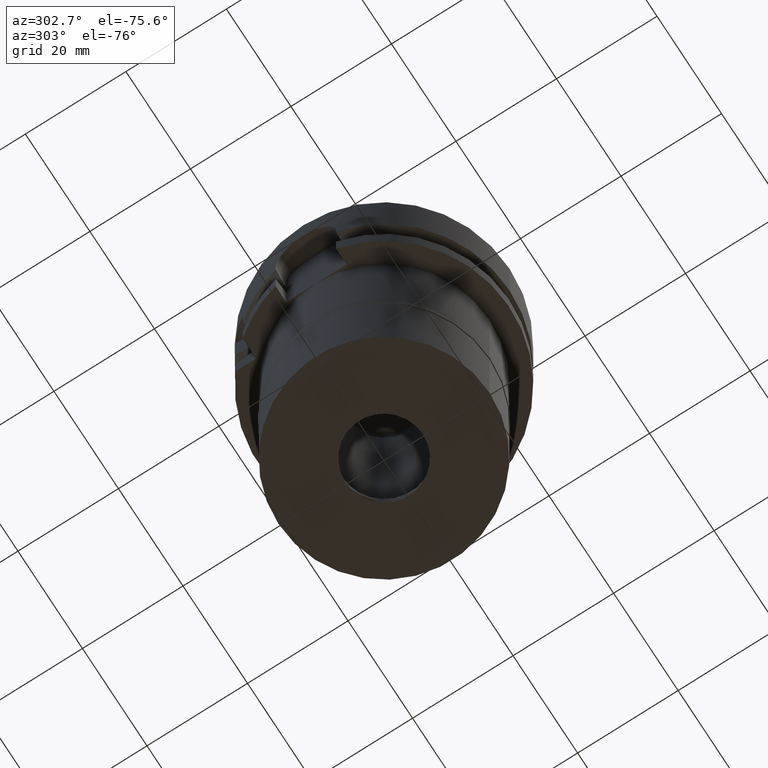
[diagram: clean part render]
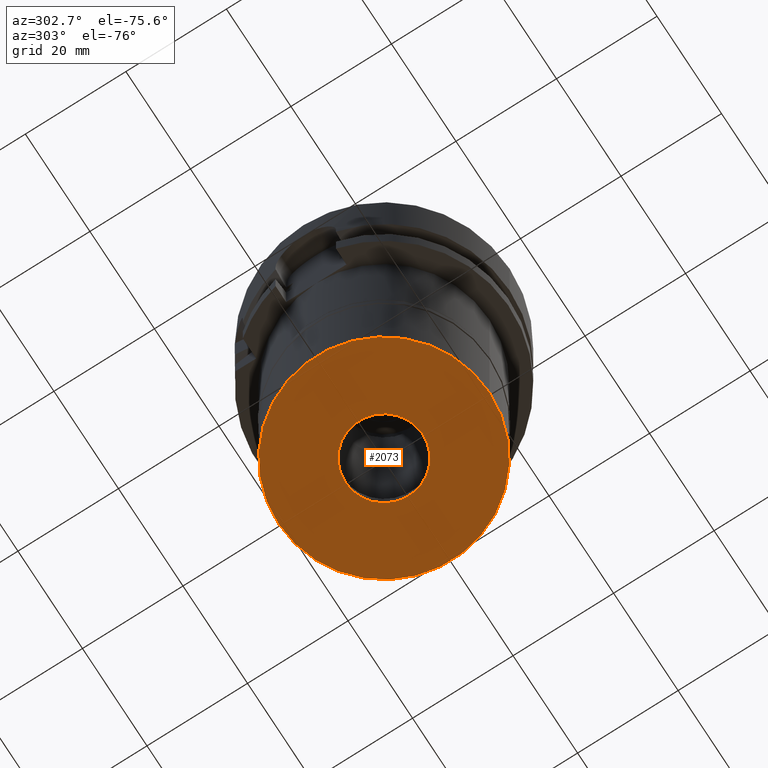
[diagram: same view with one face highlighted and labeled with its STEP entity id]
A machine part, auxiliary view. The second image highlights one B-rep face of the part: STEP entity #2073.
In plain terms, the highlighted planar face has unit normal (0, 0, -1).
Its self-contained STEP definition (entity closure, byte-faithful):
#207 = CARTESIAN_POINT ( 'NONE',  ( 0.0000000000000000000, 0.0000000000000000000, -24.29999999999999716 ) ) ;
#586 = EDGE_LOOP ( 'NONE', ( #3741, #1383 ) ) ;
#630 = CIRCLE ( 'NONE', #4535, 21.00000000000000000 ) ;
#926 = AXIS2_PLACEMENT_3D ( 'NONE', #4296, #3401, #4737 ) ;
#1250 = DIRECTION ( 'NONE',  ( 0.0000000000000000000, 0.0000000000000000000, 1.000000000000000000 ) ) ;
#1280 = DIRECTION ( 'NONE',  ( 0.0000000000000000000, 1.000000000000000000, 0.0000000000000000000 ) ) ;
#1281 = DIRECTION ( 'NONE',  ( 0.0000000000000000000, -1.000000000000000000, 0.0000000000000000000 ) ) ;
#1383 = ORIENTED_EDGE ( 'NONE', *, *, #4927, .F. ) ;
#1614 = ORIENTED_EDGE ( 'NONE', *, *, #3288, .F. ) ;
#1634 = CARTESIAN_POINT ( 'NONE',  ( 0.0000000000000000000, 7.700000000000000178, -24.29999999999999716 ) ) ;
#1717 = CARTESIAN_POINT ( 'NONE',  ( 0.0000000000000000000, 0.0000000000000000000, -24.29999999999999716 ) ) ;
#1907 = CARTESIAN_POINT ( 'NONE',  ( 0.0000000000000000000, 0.0000000000000000000, -24.29999999999999716 ) ) ;
#2073 = ADVANCED_FACE ( 'NONE', ( #4213, #5111 ), #3029, .T. ) ;
#2480 = CIRCLE ( 'NONE', #3289, 7.700000000000000178 ) ;
#2552 = CARTESIAN_POINT ( 'NONE',  ( 0.0000000000000000000, -7.700000000000000178, -24.29999999999999716 ) ) ;
#2849 = CIRCLE ( 'NONE', #4160, 7.700000000000000178 ) ;
#2916 = VERTEX_POINT ( 'NONE', #1634 ) ;
#2972 = EDGE_CURVE ( 'NONE', #4778, #4013, #4812, .T. ) ;
#3029 = PLANE ( 'NONE',  #926 ) ;
#3092 = DIRECTION ( 'NONE',  ( 0.0000000000000000000, 0.0000000000000000000, 1.000000000000000000 ) ) ;
#3156 = DIRECTION ( 'NONE',  ( 0.0000000000000000000, 1.000000000000000000, 0.0000000000000000000 ) ) ;
#3288 = EDGE_CURVE ( 'NONE', #2916, #5117, #2480, .T. ) ;
#3289 = AXIS2_PLACEMENT_3D ( 'NONE', #207, #4446, #3156 ) ;
#3401 = DIRECTION ( 'NONE',  ( 0.0000000000000000000, 0.0000000000000000000, -1.000000000000000000 ) ) ;
#3414 = CARTESIAN_POINT ( 'NONE',  ( 0.0000000000000000000, 0.0000000000000000000, -24.29999999999999716 ) ) ;
#3741 = ORIENTED_EDGE ( 'NONE', *, *, #2972, .F. ) ;
#4013 = VERTEX_POINT ( 'NONE', #5043 ) ;
#4062 = EDGE_CURVE ( 'NONE', #5117, #2916, #2849, .T. ) ;
#4160 = AXIS2_PLACEMENT_3D ( 'NONE', #3414, #4253, #1281 ) ;
#4213 = FACE_OUTER_BOUND ( 'NONE', #586, .T. ) ;
#4253 = DIRECTION ( 'NONE',  ( 0.0000000000000000000, 0.0000000000000000000, -1.000000000000000000 ) ) ;
#4296 = CARTESIAN_POINT ( 'NONE',  ( 0.0000000000000000000, 0.0000000000000000000, -24.29999999999999716 ) ) ;
#4329 = CARTESIAN_POINT ( 'NONE',  ( 0.0000000000000000000, 21.00000000000000000, -24.29999999999999716 ) ) ;
#4446 = DIRECTION ( 'NONE',  ( 0.0000000000000000000, 0.0000000000000000000, -1.000000000000000000 ) ) ;
#4535 = AXIS2_PLACEMENT_3D ( 'NONE', #1907, #3092, #4799 ) ;
#4636 = AXIS2_PLACEMENT_3D ( 'NONE', #1717, #1250, #1280 ) ;
#4737 = DIRECTION ( 'NONE',  ( 0.0000000000000000000, -1.000000000000000000, 0.0000000000000000000 ) ) ;
#4778 = VERTEX_POINT ( 'NONE', #4329 ) ;
#4799 = DIRECTION ( 'NONE',  ( 0.0000000000000000000, -1.000000000000000000, 0.0000000000000000000 ) ) ;
#4812 = CIRCLE ( 'NONE', #4636, 21.00000000000000000 ) ;
#4927 = EDGE_CURVE ( 'NONE', #4013, #4778, #630, .T. ) ;
#4937 = EDGE_LOOP ( 'NONE', ( #1614, #4977 ) ) ;
#4977 = ORIENTED_EDGE ( 'NONE', *, *, #4062, .F. ) ;
#5043 = CARTESIAN_POINT ( 'NONE',  ( 0.0000000000000000000, -21.00000000000000000, -24.29999999999999716 ) ) ;
#5111 = FACE_BOUND ( 'NONE', #4937, .T. ) ;
#5117 = VERTEX_POINT ( 'NONE', #2552 ) ;